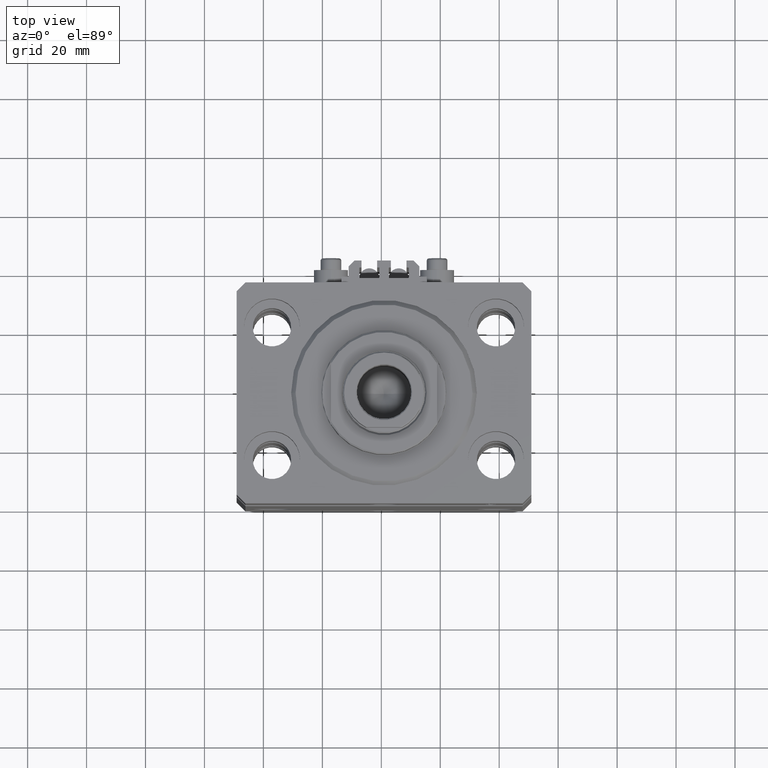
[diagram: clean part render]
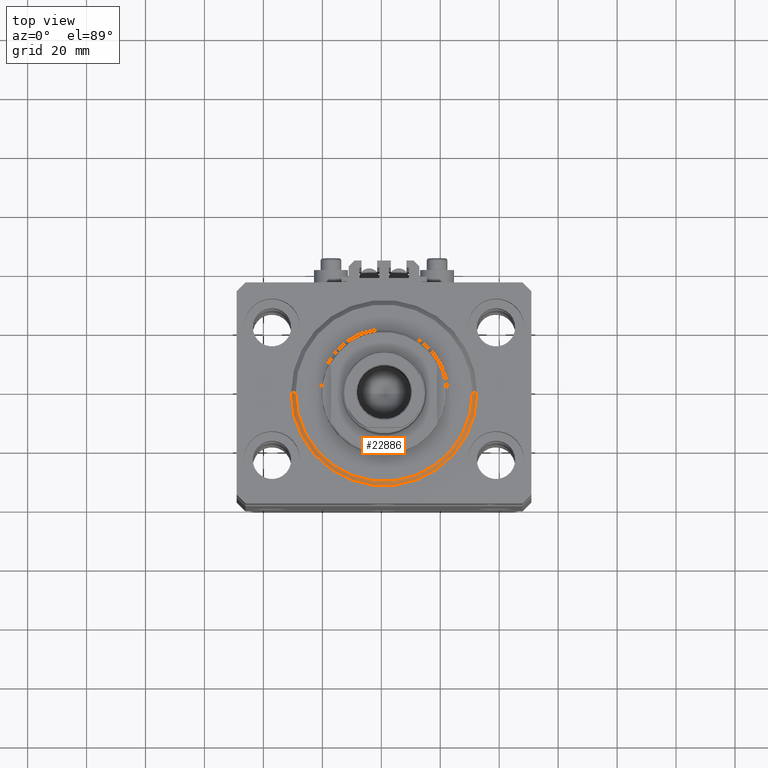
[diagram: same view with one face highlighted and labeled with its STEP entity id]
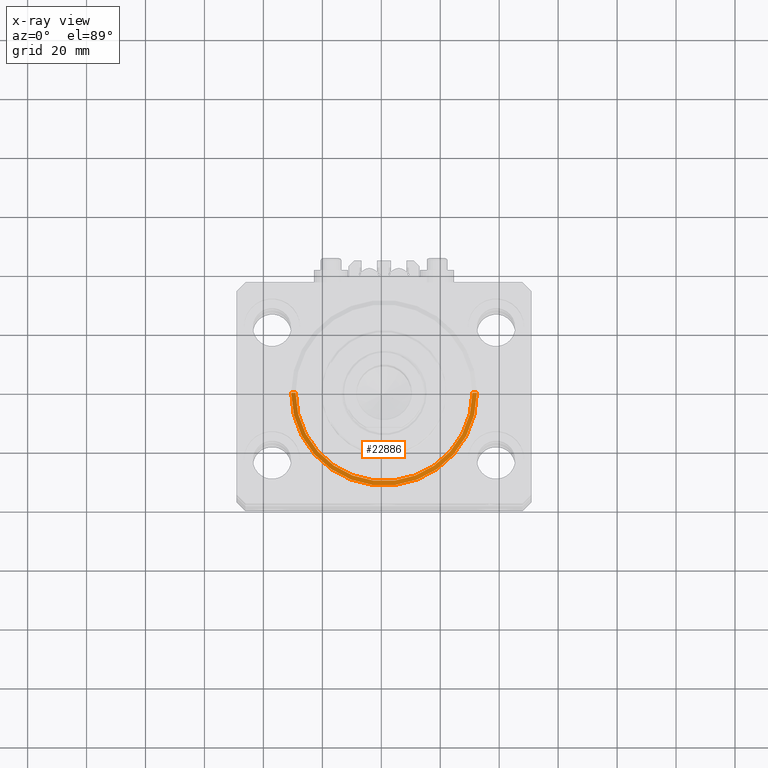
[diagram: x-ray of the same camera — body ghosted, the highlighted face saturated]
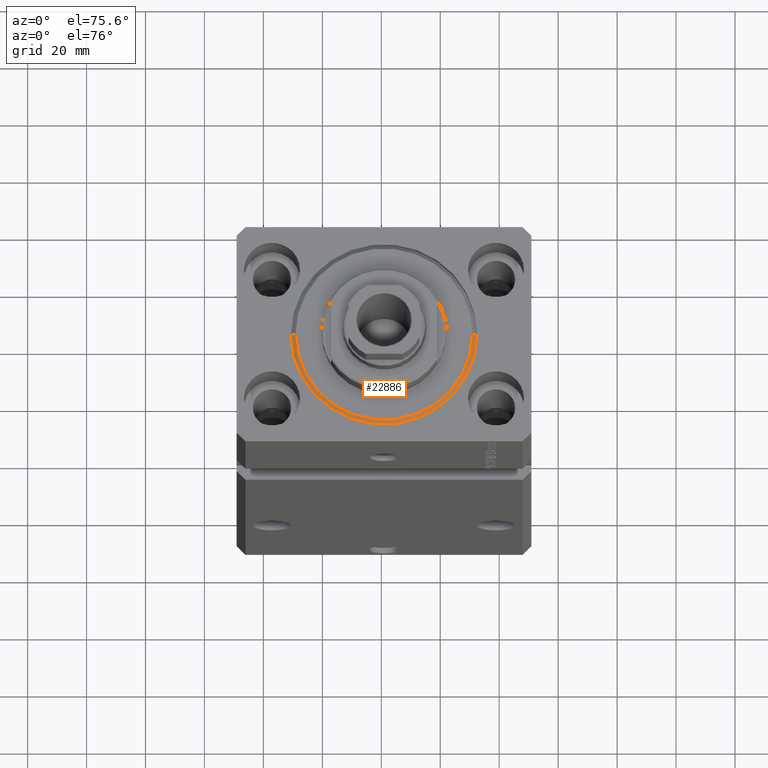
[diagram: same view with one face highlighted and labeled with its STEP entity id]
A machine part, top view. The second image highlights one B-rep face of the part: STEP entity #22886.
The next image is the same camera in x-ray: the body ghosted, the highlighted face saturated — about 0% of this face is hidden behind the body in this view.
A second angle (auxiliary view) of the same face is appended — the face is thin or edge-on in the first view.
In plain terms, the highlighted conical surface has half-angle 45 deg.
Its self-contained STEP definition (entity closure, byte-faithful):
#1261 = VECTOR ( 'NONE', #30688, 1000.000000000000000 ) ;
#1394 = LINE ( 'NONE', #9088, #7214 ) ;
#1412 = EDGE_CURVE ( 'NONE', #17972, #29732, #22381, .T. ) ;
#1928 = ORIENTED_EDGE ( 'NONE', *, *, #1412, .F. ) ;
#4187 = LINE ( 'NONE', #26975, #1261 ) ;
#4778 = EDGE_CURVE ( 'NONE', #45217, #41614, #46098, .T. ) ;
#7214 = VECTOR ( 'NONE', #15789, 1000.000000000000000 ) ;
#7343 = CARTESIAN_POINT ( 'NONE',  ( 0.000000000000000000, 0.000000000000000000, 1.500000000000001332 ) ) ;
#8120 = AXIS2_PLACEMENT_3D ( 'NONE', #19274, #11115, #33650 ) ;
#9088 = CARTESIAN_POINT ( 'NONE',  ( -31.50000000000000000, 3.857637417314162689E-15, 1.500000000000001332 ) ) ;
#11115 = DIRECTION ( 'NONE',  ( -0.000000000000000000, -0.000000000000000000, -1.000000000000000000 ) ) ;
#13097 = ORIENTED_EDGE ( 'NONE', *, *, #43207, .F. ) ;
#13156 = CARTESIAN_POINT ( 'NONE',  ( -29.99999999999999289, 3.765788907378110539E-15, 0.000000000000000000 ) ) ;
#13981 = ORIENTED_EDGE ( 'NONE', *, *, #4778, .F. ) ;
#15789 = DIRECTION ( 'NONE',  ( -0.7071067811865491270, 8.659560562354952580E-17, 0.7071067811865459074 ) ) ;
#17086 = EDGE_CURVE ( 'NONE', #45217, #29732, #4187, .T. ) ;
#17972 = VERTEX_POINT ( 'NONE', #38199 ) ;
#19274 = CARTESIAN_POINT ( 'NONE',  ( 0.000000000000000000, 0.000000000000000000, 0.000000000000000000 ) ) ;
#22095 = AXIS2_PLACEMENT_3D ( 'NONE', #7343, #22464, #37568 ) ;
#22381 = CIRCLE ( 'NONE', #34217, 31.50000000000000000 ) ;
#22464 = DIRECTION ( 'NONE',  ( -0.000000000000000000, -0.000000000000000000, 1.000000000000000000 ) ) ;
#22886 = ADVANCED_FACE ( 'NONE', ( #29883 ), #46620, .T. ) ;
#24250 = ORIENTED_EDGE ( 'NONE', *, *, #17086, .T. ) ;
#24693 = DIRECTION ( 'NONE',  ( -0.000000000000000000, -0.000000000000000000, 1.000000000000000000 ) ) ;
#26975 = CARTESIAN_POINT ( 'NONE',  ( 31.50000000000000000, 0.000000000000000000, 1.500000000000001332 ) ) ;
#29132 = CARTESIAN_POINT ( 'NONE',  ( 0.000000000000000000, 0.000000000000000000, 1.500000000000001332 ) ) ;
#29732 = VERTEX_POINT ( 'NONE', #40769 ) ;
#29883 = FACE_OUTER_BOUND ( 'NONE', #31581, .T. ) ;
#30688 = DIRECTION ( 'NONE',  ( 0.7071067811865491270, 0.000000000000000000, 0.7071067811865459074 ) ) ;
#31581 = EDGE_LOOP ( 'NONE', ( #13097, #13981, #24250, #1928 ) ) ;
#33650 = DIRECTION ( 'NONE',  ( 1.000000000000000000, 0.000000000000000000, 0.000000000000000000 ) ) ;
#34217 = AXIS2_PLACEMENT_3D ( 'NONE', #29132, #24693, #43524 ) ;
#37568 = DIRECTION ( 'NONE',  ( 1.000000000000000000, 0.000000000000000000, 0.000000000000000000 ) ) ;
#38199 = CARTESIAN_POINT ( 'NONE',  ( -31.50000000000000000, 0.000000000000000000, 1.500000000000001332 ) ) ;
#38769 = CARTESIAN_POINT ( 'NONE',  ( 29.99999999999999289, 0.000000000000000000, 0.000000000000000000 ) ) ;
#40769 = CARTESIAN_POINT ( 'NONE',  ( 31.50000000000000000, 3.857637417314162689E-15, 1.500000000000001332 ) ) ;
#41614 = VERTEX_POINT ( 'NONE', #13156 ) ;
#43207 = EDGE_CURVE ( 'NONE', #41614, #17972, #1394, .T. ) ;
#43524 = DIRECTION ( 'NONE',  ( 1.000000000000000000, 0.000000000000000000, 0.000000000000000000 ) ) ;
#45217 = VERTEX_POINT ( 'NONE', #38769 ) ;
#46098 = CIRCLE ( 'NONE', #8120, 29.99999999999999289 ) ;
#46620 = CONICAL_SURFACE ( 'NONE', #22095, 31.50000000000000000, 0.7853981633974506105 ) ;